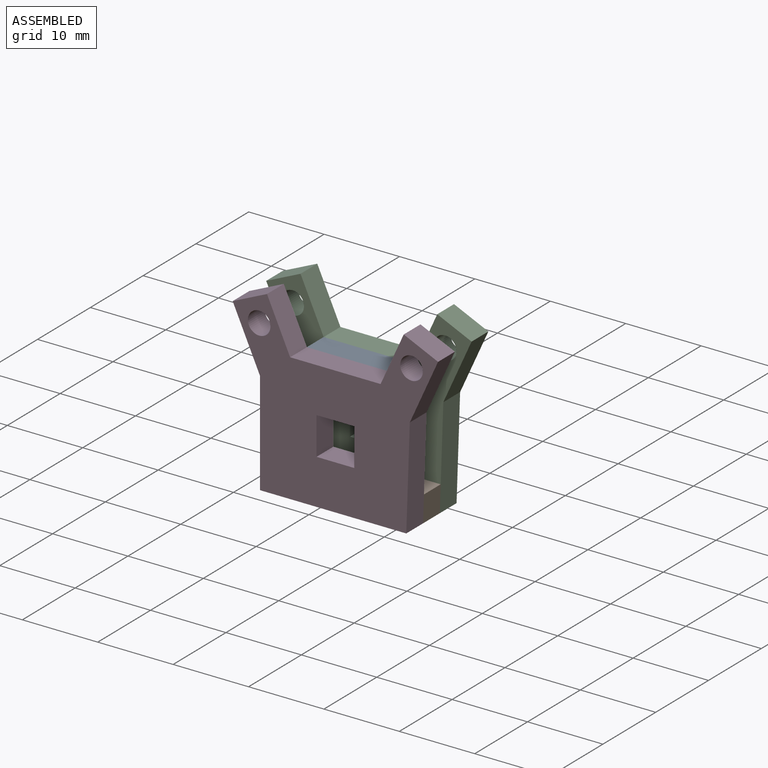
[diagram: assembled view]
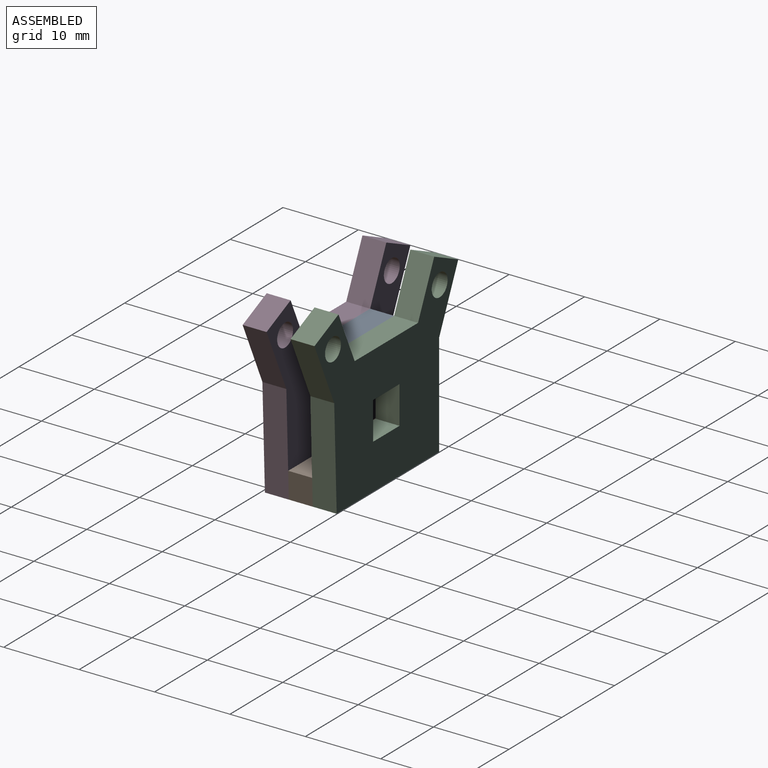
[diagram: assembled view, second angle]
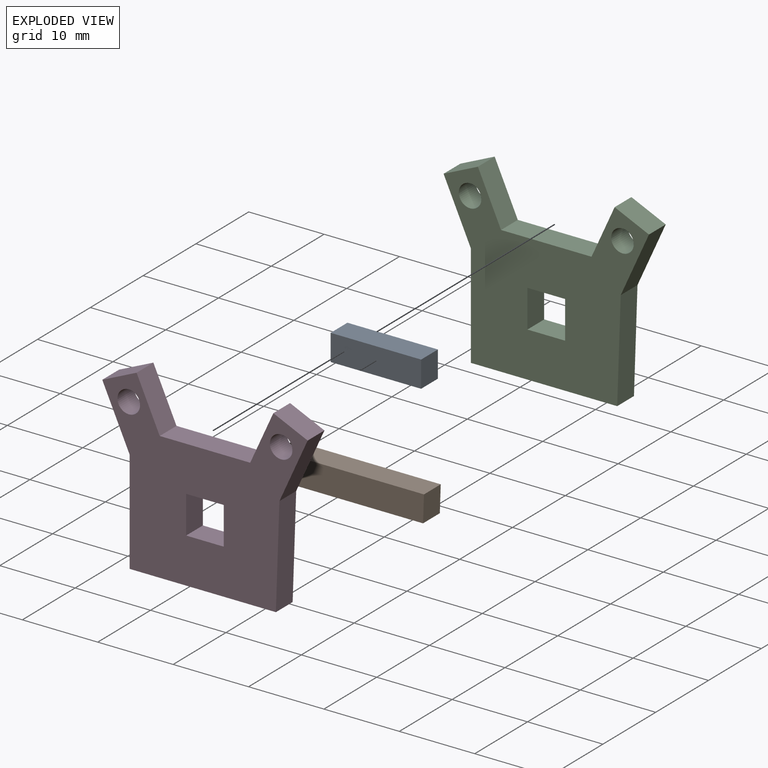
[diagram: exploded view]
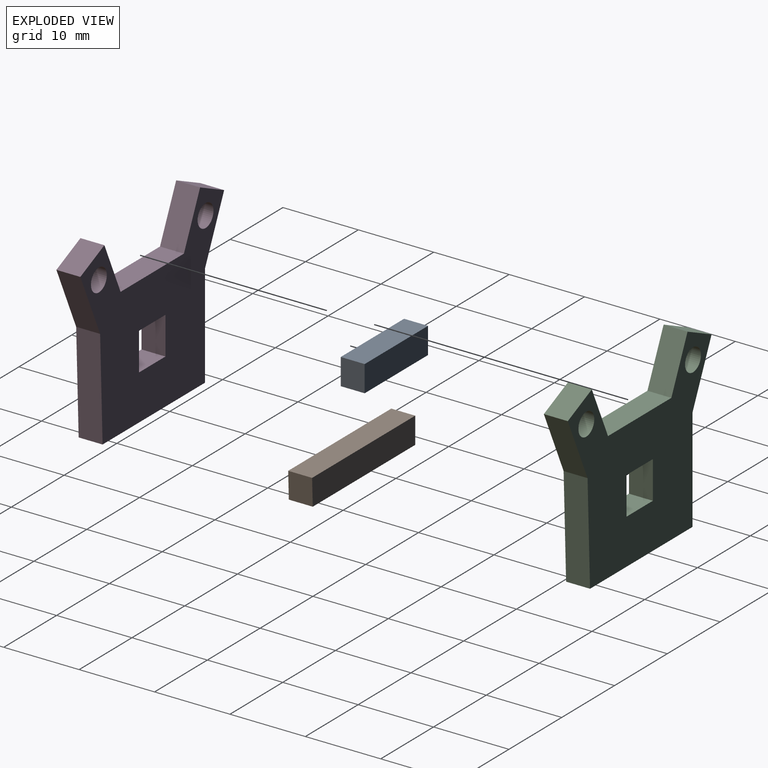
[diagram: exploded view, second angle]
ASSEMBLY  parts=4 mates=3
PART A: 6 faces, bbox 12x3.2x3.5 mm
  f0: plane 3.5x3.18mm, normal (-1,0,0), area 11.1mm2, adj f1,f3,f4,f5
  f1: plane 12x3.18mm, normal (0,0,1), area 38.1mm2, adj f0,f2,f4,f5
  f2: plane 3.5x3.18mm, normal (1,0,0), area 11.1mm2, adj f1,f3,f4,f5
  f3: plane 12x3.18mm, normal (0,0,-1), area 38.1mm2, adj f0,f2,f4,f5
  f4: plane 12x3.5mm, normal (0,1,0), area 42mm2, adj f0,f1,f2,f3
  f5: plane 12x3.5mm, normal (0,-1,0), area 42mm2, adj f0,f1,f2,f3
PART B: 6 faces, bbox 19.5x3.2x3.5 mm
  f0: plane 19.53x3.18mm, normal (0,0,1), area 62mm2, adj f1,f3,f4,f5
  f1: plane 3.5x3.18mm, normal (1,0,-0.03), area 11.1mm2, adj f0,f2,f4,f5
  f2: plane 19.41x3.18mm, normal (0,0,-1), area 61.6mm2, adj f1,f3,f4,f5
  f3: plane 3.5x3.18mm, normal (-1,0,0), area 11.1mm2, adj f0,f2,f4,f5
  f4: plane 19.53x3.5mm, normal (0,1,0), area 68.1mm2, adj f0,f1,f2,f3
  f5: plane 19.53x3.5mm, normal (0,-1,0), area 68.1mm2, adj f0,f1,f2,f3
PART C: 18 faces, bbox 27.2x3.2x23.8 mm
  f0: plane 5x3.18mm, normal (-1,0,0), area 15.9mm2, adj f1,f13,f16,f17
  f1: plane 5x3.18mm, normal (0,0,1), area 15.9mm2, adj f0,f2,f16,f17
  f2: plane 5x3.18mm, normal (1,0,0), area 15.9mm2, adj f1,f13,f16,f17
  f3: plane 13.44x3.18mm, normal (1,0,-0.03), area 42.7mm2, adj f4,f14,f16,f17
  f4: plane 8.26x3.75mm, normal (0.91,0,-0.41), area 28.8mm2, adj f3,f5,f16,f17
  f5: plane 4.55x3.18mm, normal (0.41,0,0.91), area 15.9mm2, adj f4,f6,f16,f17
  f6: plane 6.76x3.18mm, normal (-0.91,0,0.41), area 23.6mm2, adj f5,f7,f16,f17
  f7: plane 12x3.18mm, normal (0,0,1), area 38.1mm2, adj f6,f8,f16,f17
  f8: plane 6.76x3.18mm, normal (0.91,0,0.41), area 23.6mm2, adj f7,f9,f16,f17
  f9: plane 4.55x3.18mm, normal (-0.41,0,0.91), area 15.9mm2, adj f8,f10,f16,f17
  f10: plane 7.98x3.62mm, normal (-0.91,0,-0.41), area 27.8mm2, adj f9,f11,f16,f17
  f11: plane 13.71x3.18mm, normal (-1,0,0), area 43.5mm2, adj f10,f14,f16,f17
  f12: cylinder r=1.5mm len=3.18mm, axis (0,1,0), area 29.9mm2, adj f16,f17
  f13: plane 5x3.18mm, normal (0,0,-1), area 15.9mm2, adj f0,f2,f16,f17
  f14: plane 19.41x3.18mm, normal (0,0,-1), area 61.6mm2, adj f3,f11,f16,f17
  f15: cylinder r=1.5mm len=3.18mm, axis (0,1,0), area 29.9mm2, adj f16,f17
  f16: plane 27.24x23.76mm, normal (0,-1,0), area 363.8mm2, adj f0,f1,f2,f3,f4,f5,f6,f7
  f17: plane 27.24x23.76mm, normal (0,1,0), area 363.8mm2, adj f0,f1,f2,f3,f4,f5,f6,f7
PART D: same geometry as C
PLACE A rot(axis=(0,1,0),180deg) t=(-27.27,-5.7,25.58)mm
PLACE B t=(-27.27,-5.7,12.08)mm
PLACE C t=(-27.27,0.65,12.08)mm fixed
PLACE D t=(-27.27,-5.7,12.08)mm
MATE fastened C.f16 <-> A.f4  axis (0,-1,0) through (-27.27,-2.53,20.58)mm
MATE fastened B.f5 <-> D.f17  axis (0,-1,0) through (-27.57,-5.7,3.58)mm
MATE fastened C.f16 <-> B.f4  axis (0,-1,0) through (-27.57,-2.53,3.58)mm
